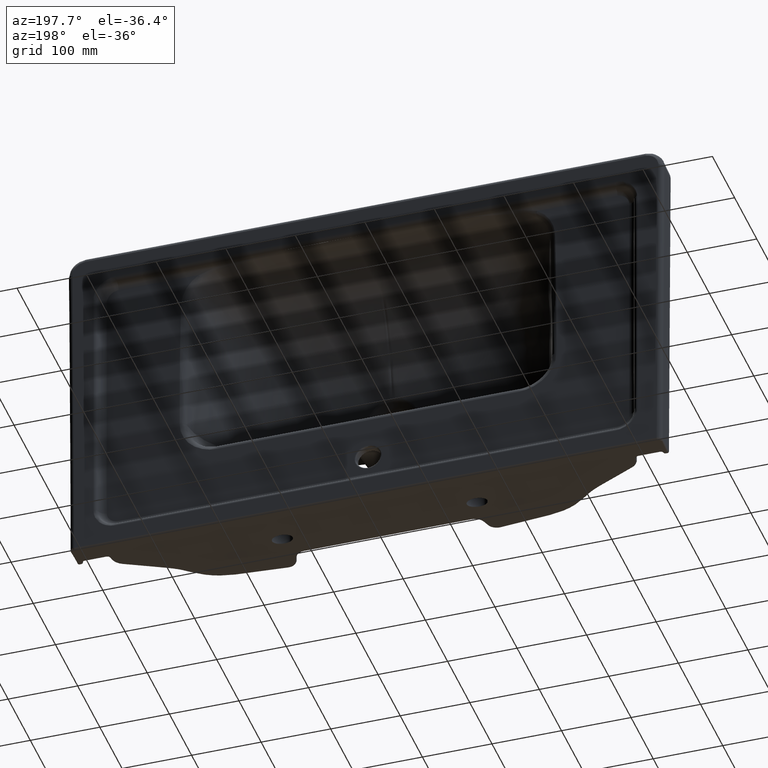
[diagram: clean part render]
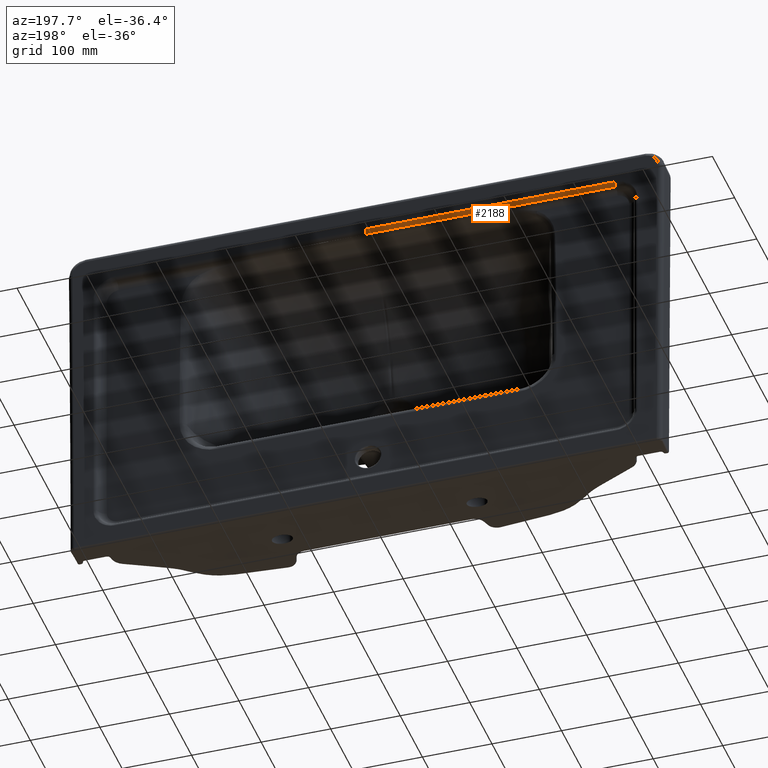
[diagram: same view with one face highlighted and labeled with its STEP entity id]
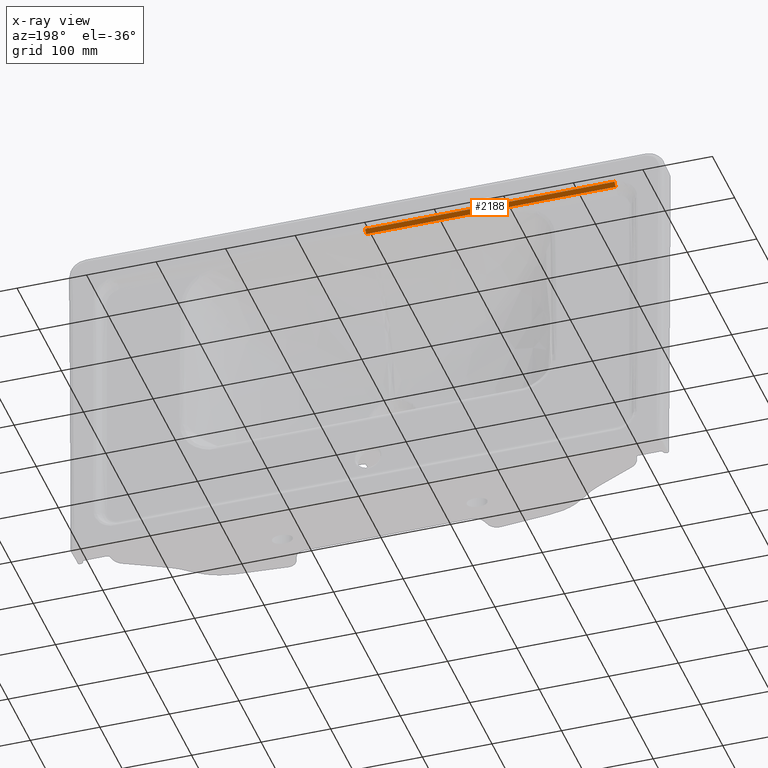
[diagram: x-ray of the same camera — body ghosted, the highlighted face saturated]
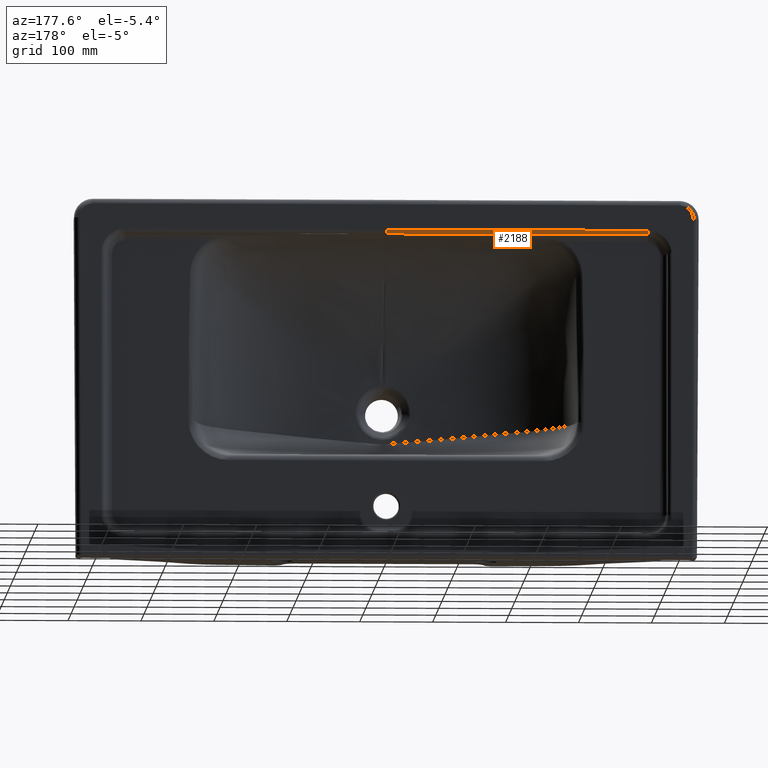
[diagram: same view with one face highlighted and labeled with its STEP entity id]
A machine part, auxiliary view. The second image highlights one B-rep face of the part: STEP entity #2188.
The next image is the same camera in x-ray: the body ghosted, the highlighted face saturated — about 0% of this face is hidden behind the body in this view.
A second angle (auxiliary view) of the same face is appended — the face is thin or edge-on in the first view.
In plain terms, the highlighted face is a freeform B-spline surface patch.
Its self-contained STEP definition (entity closure, byte-faithful):
#549=(
BOUNDED_SURFACE()
B_SPLINE_SURFACE(3,2,((#56198,#56199,#56200),(#56201,#56202,#56203),(#56204,
#56205,#56206),(#56207,#56208,#56209)),.UNSPECIFIED.,.F.,.F.,.F.)
B_SPLINE_SURFACE_WITH_KNOTS((4,4),(3,3),(0.,1.),(0.,1.),.UNSPECIFIED.)
GEOMETRIC_REPRESENTATION_ITEM()
RATIONAL_B_SPLINE_SURFACE(((1.,0.803856860284997,1.),(1.,0.803856860284997,
1.),(1.,0.803856860273238,1.),(1.,0.803856860273238,1.)))
REPRESENTATION_ITEM('')
SURFACE()
);
#733=CIRCLE('',#8096,6.);
#841=CIRCLE('',#8247,6.);
#1701=B_SPLINE_CURVE_WITH_KNOTS('',3,(#56178,#56179,#56180,#56181,#56182,
#56183,#56184),.UNSPECIFIED.,.F.,.F.,(4,3,4),(0.,0.768278949370369,1.),
 .UNSPECIFIED.);
#1702=B_SPLINE_CURVE_WITH_KNOTS('',3,(#56185,#56186,#56187,#56188,#56189,
#56190,#56191,#56192,#56193,#56194,#56195,#56196,#56197),.UNSPECIFIED.,
 .F.,.F.,(4,3,3,3,4),(0.,0.0334623677332399,0.167311838666205,0.702709722398066,
1.),.UNSPECIFIED.);
#2188=ADVANCED_FACE('',(#2746),#549,.T.);
#2746=FACE_OUTER_BOUND('',#3272,.T.);
#3272=EDGE_LOOP('',(#5519,#5520,#5521,#5522));
#5519=ORIENTED_EDGE('',*,*,#7650,.F.);
#5520=ORIENTED_EDGE('',*,*,#7142,.T.);
#5521=ORIENTED_EDGE('',*,*,#7651,.F.);
#5522=ORIENTED_EDGE('',*,*,#7617,.T.);
#6224=VERTEX_POINT('',#30228);
#6225=VERTEX_POINT('',#30242);
#6481=VERTEX_POINT('',#52469);
#6482=VERTEX_POINT('',#52471);
#7142=EDGE_CURVE('',#6224,#6225,#733,.T.);
#7617=EDGE_CURVE('',#6482,#6481,#841,.T.);
#7650=EDGE_CURVE('',#6224,#6481,#1701,.T.);
#7651=EDGE_CURVE('',#6482,#6225,#1702,.T.);
#8096=AXIS2_PLACEMENT_3D('',#30243,#8765,#8766);
#8247=AXIS2_PLACEMENT_3D('',#52470,#9092,#9093);
#8765=DIRECTION('',(-1.,0.,0.));
#8766=DIRECTION('',(0.,0.,-1.));
#9092=DIRECTION('',(0.99999999999999,6.01386449525654E-012,-1.40056052442249E-007));
#9093=DIRECTION('',(-1.4005605009082E-007,0.,-0.999999999999992));
#30228=CARTESIAN_POINT('',(-4.,-17.125866403594,212.655681490497));
#30242=CARTESIAN_POINT('',(-4.,-21.3716361752575,206.917852947779));
#30243=CARTESIAN_POINT('',(-3.99999999998004,-23.125866403594,212.655681483557));
#52469=CARTESIAN_POINT('',(-362.611801435351,-17.1258664057512,212.655731726856));
#52470=CARTESIAN_POINT('',(-362.611801435315,-23.1258664057512,212.655731720154));
#52471=CARTESIAN_POINT('',(-362.611802238942,-21.3716361774148,206.917903184376));
#56178=CARTESIAN_POINT('',(-4.,-17.125866403594,212.655681490497));
#56179=CARTESIAN_POINT('',(-95.8379660128555,-17.1258664041464,212.655694360031));
#56180=CARTESIAN_POINT('',(-187.675932025711,-17.1258664046989,212.655707225007));
#56181=CARTESIAN_POINT('',(-279.513898038567,-17.1258664052513,212.655720088219));
#56182=CARTESIAN_POINT('',(-307.213199170828,-17.125866405418,212.6557239679));
#56183=CARTESIAN_POINT('',(-334.912500303089,-17.1258664055846,212.65572784742));
#56184=CARTESIAN_POINT('',(-362.611801435351,-17.1258664057512,212.655731726856));
#56185=CARTESIAN_POINT('',(-362.611802238942,-21.3716361774148,206.917903184376));
#56186=CARTESIAN_POINT('',(-358.611802238942,-21.3716361773907,206.917902624152));
#56187=CARTESIAN_POINT('',(-354.611802238943,-21.3716361773667,206.917902063926));
#56188=CARTESIAN_POINT('',(-350.611802238943,-21.3716361773426,206.917901503698));
#56189=CARTESIAN_POINT('',(-334.611802238943,-21.3716361772463,206.917899262786));
#56190=CARTESIAN_POINT('',(-318.611802238943,-21.3716361771501,206.917897021843));
#56191=CARTESIAN_POINT('',(-302.611802238943,-21.3716361770538,206.917894780853));
#56192=CARTESIAN_POINT('',(-238.611802238944,-21.3716361766687,206.917885816894));
#56193=CARTESIAN_POINT('',(-174.611802238944,-21.3716361762835,206.917876852192));
#56194=CARTESIAN_POINT('',(-110.611802238945,-21.3716361758986,206.917867885801));
#56195=CARTESIAN_POINT('',(-75.0745348259634,-21.3716361756848,206.917862907035));
#56196=CARTESIAN_POINT('',(-39.5372674129817,-21.3716361754711,206.917857927748));
#56197=CARTESIAN_POINT('',(-4.,-21.3716361752575,206.917852947779));
#56198=CARTESIAN_POINT('',(-362.61180143535,-17.1258664057512,212.655731726857));
#56199=CARTESIAN_POINT('',(-362.611802057166,-17.1258664007918,208.2159652715));
#56200=CARTESIAN_POINT('',(-362.611802238942,-21.3716361774148,206.917903184376));
#56201=CARTESIAN_POINT('',(-243.074534022223,-17.1258664050319,212.655714993403));
#56202=CARTESIAN_POINT('',(-243.074534644077,-17.1258664016212,208.215948543023));
#56203=CARTESIAN_POINT('',(-243.074534825864,-21.3716361734055,206.917886443464));
#56204=CARTESIAN_POINT('',(-123.537266609091,-17.1258664043129,212.655698240539));
#56205=CARTESIAN_POINT('',(-123.537267231061,-17.1258663992885,208.215931784999));
#56206=CARTESIAN_POINT('',(-123.537267412882,-21.3716361769708,206.917869698678));
#56207=CARTESIAN_POINT('',(-3.99999919596234,-17.125866403594,212.655681490497));
#56208=CARTESIAN_POINT('',(-3.99999981812337,-17.125866398459,208.215915034956));
#56209=CARTESIAN_POINT('',(-4.00000000000012,-21.3716361752575,206.917852947779));